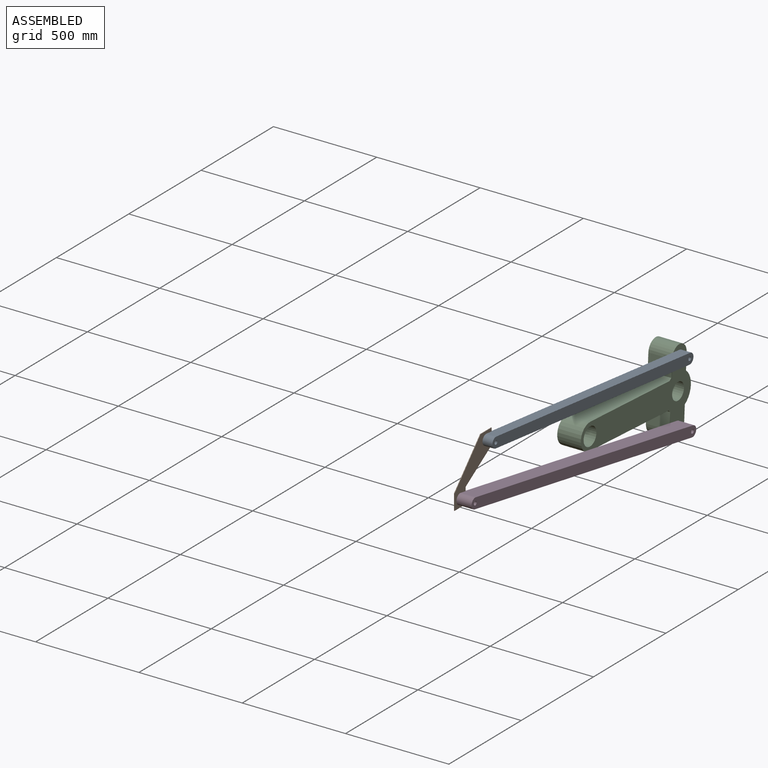
[diagram: assembled view]
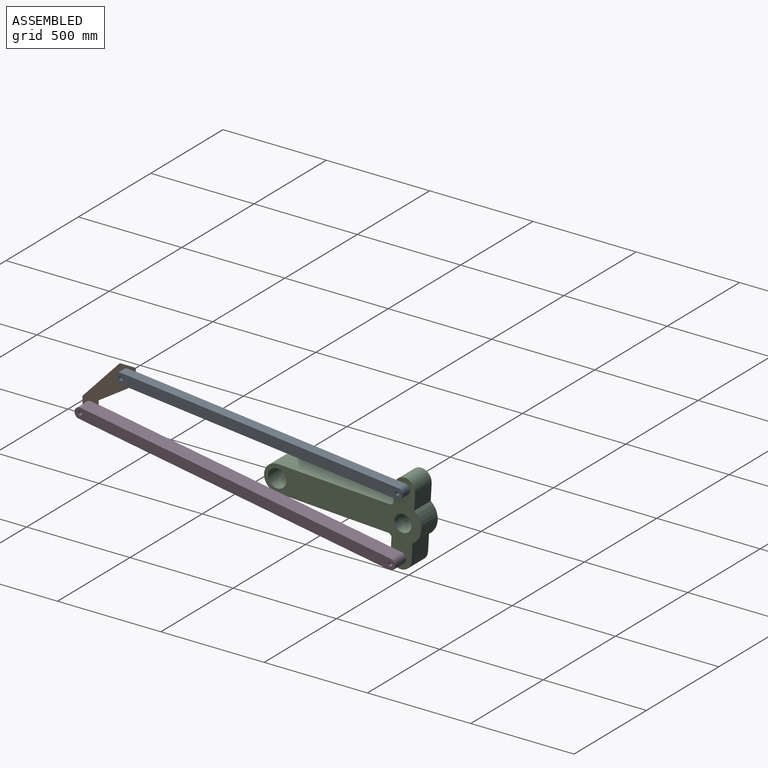
[diagram: assembled view, second angle]
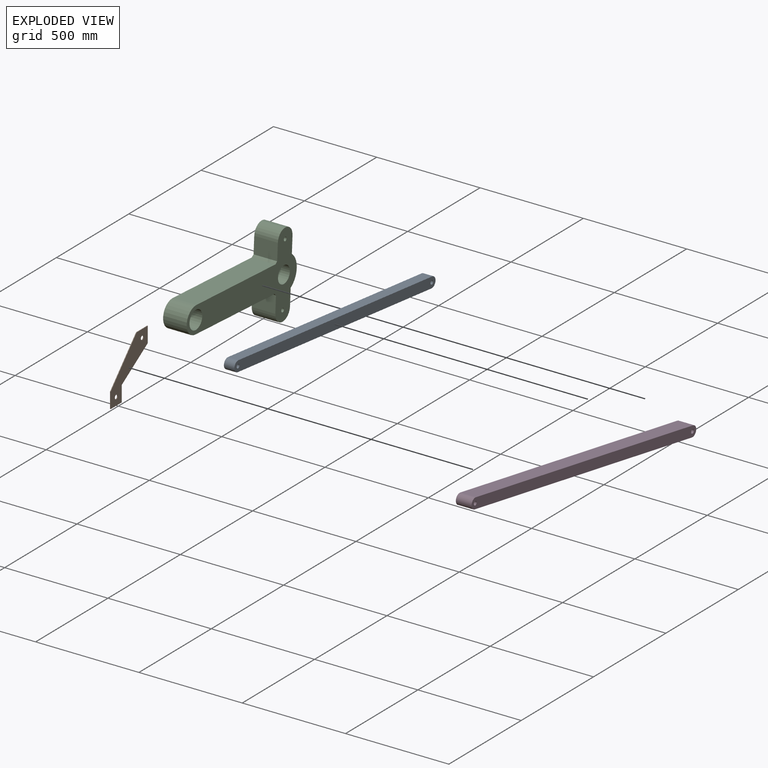
[diagram: exploded view]
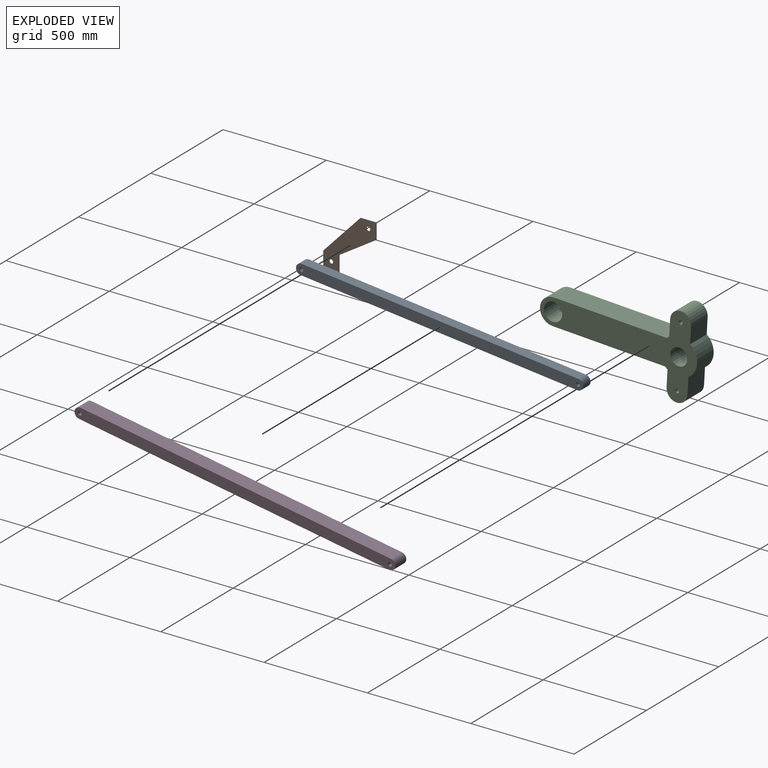
[diagram: exploded view, second angle]
ASSEMBLY  parts=4 mates=4
PART A: 8 faces, bbox 50.8x1393.2x165.4 mm
  f0: plane 1342.38x114.62mm, normal (0,-0.09,1), area 68440.9mm2, adj f1,f4,f6,f7
  f1: cylinder r=25.4mm len=50.8mm, axis (-1,0,0), area 4053.7mm2, adj f0,f2,f6,f7
  f2: plane 1342.38x114.62mm, normal (0,0.09,-1), area 68440.9mm2, adj f1,f4,f6,f7
  f3: cylinder r=9.34mm len=50.8mm, axis (-1,0,0), area 2982.5mm2, adj f6,f7
  f4: cylinder r=25.4mm len=50.8mm, axis (-1,0,0), area 4053.7mm2, adj f0,f2,f6,f7
  f5: cylinder r=9.53mm len=50.8mm, axis (-1,0,0), area 3040.2mm2, adj f6,f7
  f6: plane 1393.18x165.42mm, normal (1,0,0), area 69908.4mm2, adj f0,f1,f2,f3,f4,f5
  f7: plane 1393.18x165.42mm, normal (-1,0,0), area 69908.4mm2, adj f0,f1,f2,f3,f4,f5
PART B: 11 faces, bbox 3x256x266.7 mm
  f0: plane 76.2x3.05mm, normal (0,1,0), area 232.3mm2, adj f1,f6,f9,f10
  f1: plane 179.76x114.3mm, normal (0,0.54,-0.84), area 649.3mm2, adj f0,f2,f9,f10
  f2: plane 76.2x3.05mm, normal (0,1,0), area 232.3mm2, adj f1,f3,f9,f10
  f3: plane 76.2x3.05mm, normal (0,0,1), area 232.3mm2, adj f2,f4,f9,f10
  f4: plane 190.5x179.76mm, normal (0,-0.73,0.69), area 798.3mm2, adj f3,f5,f9,f10
  f5: plane 76.2x3.05mm, normal (0,-1,0), area 232.3mm2, adj f4,f6,f9,f10
  f6: plane 76.2x3.05mm, normal (0,0,-1), area 232.3mm2, adj f0,f5,f9,f10
  f7: cylinder r=9.53mm len=19.05mm, axis (-1,0,0), area 182.4mm2, adj f9,f10
  f8: cylinder r=9.53mm len=19.05mm, axis (-1,0,0), area 182.4mm2, adj f9,f10
  f9: plane 266.7x255.96mm, normal (1,0,0), area 26601.4mm2, adj f0,f1,f2,f3,f4,f5,f6,f7
  f10: plane 266.7x255.96mm, normal (-1,0,0), area 26601.4mm2, adj f0,f1,f2,f3,f4,f5,f6,f7
PART C: 18 faces, bbox 114.3x762x406.4 mm
  f0: plane 114.3x79.44mm, normal (0,1,0), area 9080.5mm2, adj f1,f13,f15,f16
  f1: cylinder r=88.9mm len=145.91mm, axis (1,0,0), area 19561.5mm2, adj f0,f2,f15,f16
  f2: plane 114.3x79.44mm, normal (0,1,0), area 9080.5mm2, adj f1,f3,f15,f16
  f3: cylinder r=50.8mm len=114.3mm, axis (1,0,0), area 18241.5mm2, adj f2,f4,f15,f16
  f4: plane 114.3x79.44mm, normal (0,-1,0), area 9080.5mm2, adj f3,f5,f15,f16
  f5: cylinder r=88.9mm len=114.3mm, axis (1,0,0), area 1696.4mm2, adj f4,f6,f15,f16
  f6: plane 547.38x114.3mm, normal (0,0,1), area 62565.9mm2, adj f5,f7,f15,f16
  f7: cylinder r=63.5mm len=127mm, axis (1,0,0), area 22801.8mm2, adj f6,f8,f15,f16
  f8: plane 547.38x114.3mm, normal (0,0,-1), area 62565.9mm2, adj f7,f9,f15,f16
  f9: cylinder r=88.9mm len=114.3mm, axis (1,0,0), area 1696.4mm2, adj f8,f10,f15,f16
  f10: plane 114.3x79.44mm, normal (0,-1,0), area 9080.5mm2, adj f9,f13,f15,f16
  f11: cylinder r=41.27mm len=114.3mm, axis (1,0,0), area 29642.4mm2, adj f15,f16
  f12: cylinder r=9.53mm len=114.3mm, axis (1,0,0), area 6840.6mm2, adj f15,f16
  f13: cylinder r=50.8mm len=114.3mm, axis (1,0,0), area 18241.5mm2, adj f0,f10,f15,f16
  f14: cylinder r=44.45mm len=114.3mm, axis (1,0,0), area 31922.6mm2, adj f15,f16
  f15: plane 762x406.4mm, normal (-1,0,0), area 108262.3mm2, adj f0,f1,f2,f3,f4,f5,f6,f7
  f16: plane 762x406.4mm, normal (1,0,0), area 108262.3mm2, adj f0,f1,f2,f3,f4,f5,f6,f7
  f17: cylinder r=9.53mm len=114.3mm, axis (1,0,0), area 6840.6mm2, adj f15,f16
PART D: 8 faces, bbox 76.2x1574.8x50.8 mm
  f0: plane 1524x76.2mm, normal (0,0,1), area 116128.8mm2, adj f1,f4,f6,f7
  f1: cylinder r=25.4mm len=76.2mm, axis (-1,0,0), area 6080.5mm2, adj f0,f2,f6,f7
  f2: plane 1524x76.2mm, normal (0,0,-1), area 116128.8mm2, adj f1,f4,f6,f7
  f3: cylinder r=9.53mm len=76.2mm, axis (-1,0,0), area 4560.4mm2, adj f6,f7
  f4: cylinder r=25.4mm len=76.2mm, axis (-1,0,0), area 6080.5mm2, adj f0,f2,f6,f7
  f5: cylinder r=9.53mm len=76.2mm, axis (-1,0,0), area 4560.4mm2, adj f6,f7
  f6: plane 1574.8x50.8mm, normal (1,0,0), area 78876mm2, adj f0,f1,f2,f3,f4,f5
  f7: plane 1574.8x50.8mm, normal (-1,0,0), area 78876mm2, adj f0,f1,f2,f3,f4,f5
PLACE A rot(axis=(-1,0,0),11.1deg) t=(16.09,-58.91,17.98)mm
PLACE B t=(19.39,-25.68,-20.08)mm fixed
PLACE C rot(axis=(-1,0,0),3.3deg) t=(19.39,-44.21,-192.46)mm
PLACE D rot(axis=(-1,0,0),9.8deg) t=(16.09,-25.68,-20.08)mm
MATE revolute C.f13 <-> D.f4  axis (1,0,0) through (19.39,1476.14,-279.13)mm
MATE revolute C.f3 <-> A.f3  axis (1,0,0) through (19.39,1493.49,25.17)mm
MATE revolute B.f8 <-> A.f1  axis (-1,0,0) through (19.39,154.08,170.42)mm
MATE revolute D.f1 <-> B.f7  axis (-1,0,0) through (19.39,-25.68,-20.08)mm
